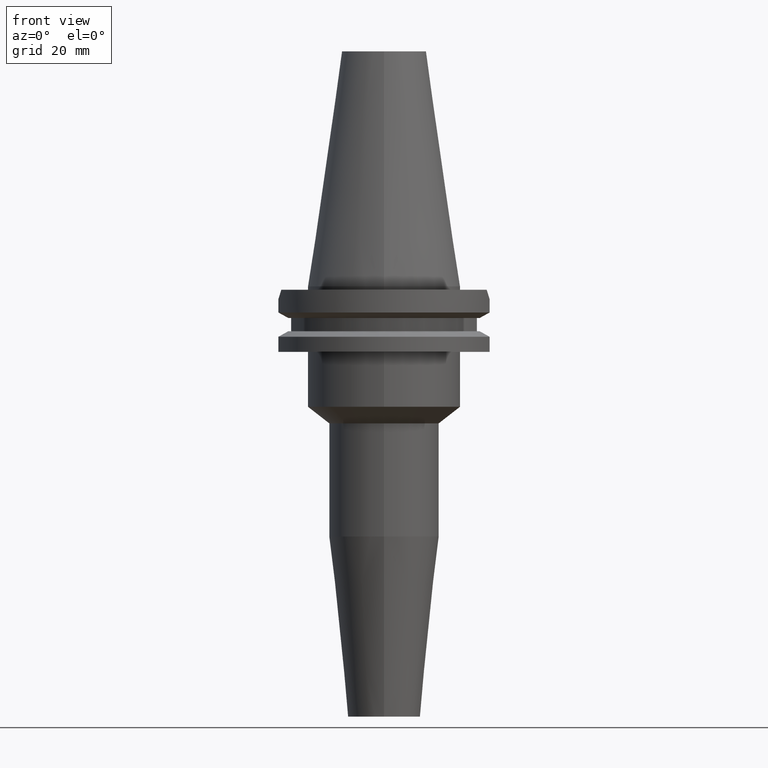
[diagram: clean part render]
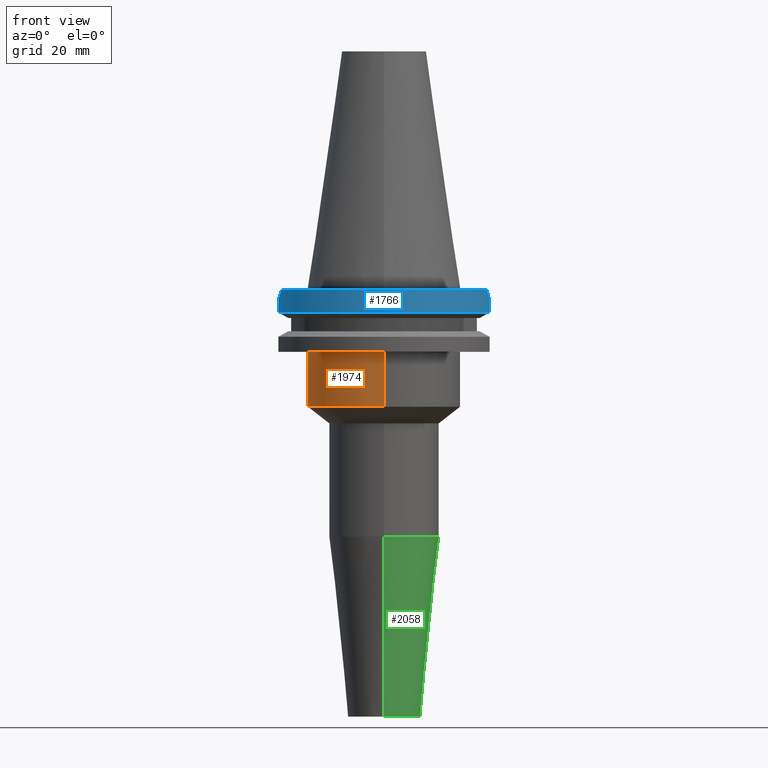
[diagram: same view with three faces highlighted in distinct colors, each labeled with its STEP entity id]
A machine part, front view with three faces highlighted in distinct colors.
Their STEP definitions:

[orange] entity #1974 — the highlighted cylindrical surface (partial cylindrical patch) has radius 22.225 mm, axis along (0, 0, -1).
#251=CARTESIAN_POINT('',(0.E0,2.178799736533E-14,-1.905E1));
#252=DIRECTION('',(0.E0,0.E0,-1.E0));
#253=DIRECTION('',(0.E0,-1.E0,0.E0));
#254=AXIS2_PLACEMENT_3D('',#251,#252,#253);
#848=DIRECTION('',(0.E0,-2.873354636773E-14,-1.E0));
#849=VECTOR('',#848,1.595E1);
#850=CARTESIAN_POINT('',(0.E0,-2.2225E1,-1.905E1));
#851=LINE('',#850,#849);
#855=DIRECTION('',(0.E0,2.828806502869E-14,-1.E0));
#856=VECTOR('',#855,1.595E1);
#857=CARTESIAN_POINT('',(0.E0,2.2225E1,-1.905E1));
#858=LINE('',#857,#856);
#885=CARTESIAN_POINT('',(0.E0,0.E0,-3.5E1));
#886=DIRECTION('',(0.E0,0.E0,1.E0));
#887=DIRECTION('',(0.E0,1.E0,0.E0));
#888=AXIS2_PLACEMENT_3D('',#885,#886,#887);
#1218=CARTESIAN_POINT('',(0.E0,2.2225E1,-3.5E1));
#1219=VERTEX_POINT('',#1218);
#1220=CARTESIAN_POINT('',(0.E0,-2.2225E1,-3.5E1));
#1221=VERTEX_POINT('',#1220);
#1222=CARTESIAN_POINT('',(0.E0,2.2225E1,-1.905E1));
#1223=VERTEX_POINT('',#1222);
#1224=CARTESIAN_POINT('',(0.E0,-2.2225E1,-1.905E1));
#1225=VERTEX_POINT('',#1224);
#1960=CARTESIAN_POINT('',(0.E0,2.178799736533E-14,7.79125E1));
#1961=DIRECTION('',(0.E0,0.E0,-1.E0));
#1962=DIRECTION('',(0.E0,-1.E0,0.E0));
#1963=AXIS2_PLACEMENT_3D('',#1960,#1961,#1962);
#1964=CYLINDRICAL_SURFACE('',#1963,2.2225E1);
#1966=ORIENTED_EDGE('',*,*,#1965,.F.);
#1967=ORIENTED_EDGE('',*,*,#1511,.F.);
#1969=ORIENTED_EDGE('',*,*,#1968,.T.);
#1971=ORIENTED_EDGE('',*,*,#1970,.F.);
#1972=EDGE_LOOP('',(#1966,#1967,#1969,#1971));
#1973=FACE_OUTER_BOUND('',#1972,.F.);
#255=CIRCLE('',#254,2.2225E1);
#889=CIRCLE('',#888,2.2225E1);
#1511=EDGE_CURVE('',#1225,#1223,#255,.T.);
#1965=EDGE_CURVE('',#1223,#1219,#858,.T.);
#1968=EDGE_CURVE('',#1225,#1221,#851,.T.);
#1970=EDGE_CURVE('',#1219,#1221,#889,.T.);
#1974=ADVANCED_FACE('',(#1973),#1964,.T.);

[blue] entity #1766 — the highlighted cylindrical surface (partial cylindrical patch) has radius 31.75 mm, axis along (0, 0, -1).
#108=CARTESIAN_POINT('',(0.E0,2.178799736533E-14,-1.E0));
#109=DIRECTION('',(0.E0,0.E0,-1.E0));
#110=DIRECTION('',(9.393382785306E-1,-3.429921259843E-1,0.E0));
#111=AXIS2_PLACEMENT_3D('',#108,#109,#110);
#116=CARTESIAN_POINT('',(0.E0,2.178799736533E-14,-1.E0));
#117=DIRECTION('',(0.E0,0.E0,-1.E0));
#118=DIRECTION('',(0.E0,-1.E0,0.E0));
#119=AXIS2_PLACEMENT_3D('',#116,#117,#118);
#575=CARTESIAN_POINT('',(2.982399034335E1,-1.089E1,-1.000000000001E0));
#576=CARTESIAN_POINT('',(3.015017741992E1,-9.996685011754E0,-1.893314988246E0));
#577=CARTESIAN_POINT('',(3.043345108244E1,-9.096596073173E0,-2.793403926827E0));
#578=CARTESIAN_POINT('',(3.067550162589E1,-8.19E0,-3.7E0));
#583=DIRECTION('',(-4.149952334243E-8,-1.554361652636E-7,-1.E0));
#584=VECTOR('',#583,3.901327811715E0);
#585=CARTESIAN_POINT('',(3.067550162589E1,-8.19E0,-3.7E0));
#586=LINE('',#585,#584);
#590=DIRECTION('',(8.604053470649E-9,-3.222588451522E-8,1.E0));
#591=VECTOR('',#590,3.901334354445E0);
#592=CARTESIAN_POINT('',(-3.067550165946E1,-8.189999874276E0,
-7.601334354445E0));
#593=LINE('',#592,#591);
#597=CARTESIAN_POINT('',(-3.067550162589E1,-8.19E0,-3.7E0));
#598=CARTESIAN_POINT('',(-3.043345108244E1,-9.096596073173E0,
-2.793403926827E0));
#599=CARTESIAN_POINT('',(-3.015017741992E1,-9.996685011754E0,
-1.893314988246E0));
#600=CARTESIAN_POINT('',(-2.982399034335E1,-1.089E1,-1.000000000001E0));
#624=CARTESIAN_POINT('',(3.067550146399E1,-8.190000606407E0,-7.601327811715E0));
#674=CARTESIAN_POINT('',(0.E0,1.121722380079E-14,-7.601333230926E0));
#675=DIRECTION('',(0.E0,0.E0,1.E0));
#676=DIRECTION('',(-9.661575315241E-1,-2.579527559055E-1,0.E0));
#677=AXIS2_PLACEMENT_3D('',#674,#675,#676);
#682=CARTESIAN_POINT('',(0.E0,1.121722380079E-14,-7.601333230926E0));
#683=DIRECTION('',(0.E0,0.E0,1.E0));
#684=DIRECTION('',(0.E0,-1.E0,0.E0));
#685=AXIS2_PLACEMENT_3D('',#682,#683,#684);
#1263=VERTEX_POINT('',#624);
#1264=CARTESIAN_POINT('',(3.067550162589E1,-8.19E0,-3.7E0));
#1265=VERTEX_POINT('',#1264);
#1278=CARTESIAN_POINT('',(-3.067550162589E1,-8.19E0,-3.7E0));
#1279=VERTEX_POINT('',#1278);
#1280=CARTESIAN_POINT('',(-3.067550165946E1,-8.189999874276E0,
-7.601334354445E0));
#1281=VERTEX_POINT('',#1280);
#1332=CARTESIAN_POINT('',(0.E0,-3.175E1,-7.601333230926E0));
#1333=VERTEX_POINT('',#1332);
#1337=VERTEX_POINT('',#575);
#1338=VERTEX_POINT('',#600);
#1339=CARTESIAN_POINT('',(-1.432899828923E-14,-3.175E1,-1.E0));
#1340=VERTEX_POINT('',#1339);
#1746=CARTESIAN_POINT('',(0.E0,2.178799736533E-14,7.79125E1));
#1747=DIRECTION('',(0.E0,0.E0,-1.E0));
#1748=DIRECTION('',(0.E0,-1.E0,0.E0));
#1749=AXIS2_PLACEMENT_3D('',#1746,#1747,#1748);
#1750=CYLINDRICAL_SURFACE('',#1749,3.175E1);
#1752=ORIENTED_EDGE('',*,*,#1751,.T.);
#1754=ORIENTED_EDGE('',*,*,#1753,.T.);
#1756=ORIENTED_EDGE('',*,*,#1755,.F.);
#1758=ORIENTED_EDGE('',*,*,#1757,.F.);
#1760=ORIENTED_EDGE('',*,*,#1759,.T.);
#1761=ORIENTED_EDGE('',*,*,#1738,.T.);
#1762=ORIENTED_EDGE('',*,*,#1445,.F.);
#1763=ORIENTED_EDGE('',*,*,#1443,.F.);
#1764=EDGE_LOOP('',(#1752,#1754,#1756,#1758,#1760,#1761,#1762,#1763));
#1765=FACE_OUTER_BOUND('',#1764,.F.);
#112=CIRCLE('',#111,3.175E1);
#120=CIRCLE('',#119,3.175E1);
#579=B_SPLINE_CURVE_WITH_KNOTS('',3,(#575,#576,#577,#578),.UNSPECIFIED.,.F.,.F.,
(4,4),(0.E0,1.E0),.UNSPECIFIED.);
#601=B_SPLINE_CURVE_WITH_KNOTS('',3,(#597,#598,#599,#600),.UNSPECIFIED.,.F.,.F.,
(4,4),(0.E0,1.E0),.UNSPECIFIED.);
#678=CIRCLE('',#677,3.175E1);
#686=CIRCLE('',#685,3.175E1);
#1443=EDGE_CURVE('',#1337,#1340,#112,.T.);
#1445=EDGE_CURVE('',#1340,#1338,#120,.T.);
#1738=EDGE_CURVE('',#1279,#1338,#601,.T.);
#1751=EDGE_CURVE('',#1337,#1265,#579,.T.);
#1753=EDGE_CURVE('',#1265,#1263,#586,.T.);
#1755=EDGE_CURVE('',#1333,#1263,#686,.T.);
#1757=EDGE_CURVE('',#1281,#1333,#678,.T.);
#1759=EDGE_CURVE('',#1281,#1279,#593,.T.);
#1766=ADVANCED_FACE('',(#1765),#1750,.T.);

[green] entity #2058 — the highlighted conical surface has half-angle 6 deg.
#922=DIRECTION('',(0.E0,-1.045284632677E-1,-9.945218953683E-1));
#923=VECTOR('',#922,5.261724728428E1);
#924=CARTESIAN_POINT('',(0.E0,1.6E1,-7.267099550178E1));
#925=LINE('',#924,#923);
#929=CARTESIAN_POINT('',(0.E0,0.E0,-7.267099550178E1));
#930=DIRECTION('',(0.E0,0.E0,1.E0));
#931=DIRECTION('',(0.E0,-1.E0,0.E0));
#932=AXIS2_PLACEMENT_3D('',#929,#930,#931);
#945=DIRECTION('',(0.E0,1.045284632677E-1,-9.945218953683E-1));
#946=VECTOR('',#945,5.261724728428E1);
#947=CARTESIAN_POINT('',(0.E0,-1.6E1,-7.267099550178E1));
#948=LINE('',#947,#946);
#952=CARTESIAN_POINT('',(0.E0,0.E0,-1.25E2));
#953=DIRECTION('',(0.E0,0.E0,1.E0));
#954=DIRECTION('',(0.E0,-1.E0,0.E0));
#955=AXIS2_PLACEMENT_3D('',#952,#953,#954);
#1206=CARTESIAN_POINT('',(0.E0,-1.05E1,-1.25E2));
#1207=CARTESIAN_POINT('',(0.E0,1.05E1,-1.25E2));
#1208=VERTEX_POINT('',#1206);
#1209=VERTEX_POINT('',#1207);
#1210=CARTESIAN_POINT('',(0.E0,1.6E1,-7.267099550178E1));
#1211=VERTEX_POINT('',#1210);
#1212=CARTESIAN_POINT('',(0.E0,-1.6E1,-7.267099550178E1));
#1213=VERTEX_POINT('',#1212);
#2044=CARTESIAN_POINT('',(0.E0,0.E0,-9.883549775089E1));
#2045=DIRECTION('',(0.E0,0.E0,1.E0));
#2046=DIRECTION('',(0.E0,1.E0,0.E0));
#2047=AXIS2_PLACEMENT_3D('',#2044,#2045,#2046);
#2048=CONICAL_SURFACE('',#2047,1.325E1,6.E0);
#2050=ORIENTED_EDGE('',*,*,#2049,.T.);
#2052=ORIENTED_EDGE('',*,*,#2051,.F.);
#2054=ORIENTED_EDGE('',*,*,#2053,.F.);
#2055=ORIENTED_EDGE('',*,*,#2037,.T.);
#2056=EDGE_LOOP('',(#2050,#2052,#2054,#2055));
#2057=FACE_OUTER_BOUND('',#2056,.F.);
#933=CIRCLE('',#932,1.6E1);
#956=CIRCLE('',#955,1.05E1);
#2037=EDGE_CURVE('',#1213,#1211,#933,.T.);
#2049=EDGE_CURVE('',#1211,#1209,#925,.T.);
#2051=EDGE_CURVE('',#1208,#1209,#956,.T.);
#2053=EDGE_CURVE('',#1213,#1208,#948,.T.);
#2058=ADVANCED_FACE('',(#2057),#2048,.T.);